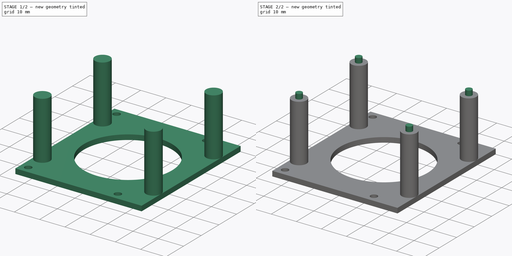
[diagram: build sequence overview — one tinted view per stage of 2, left to right]
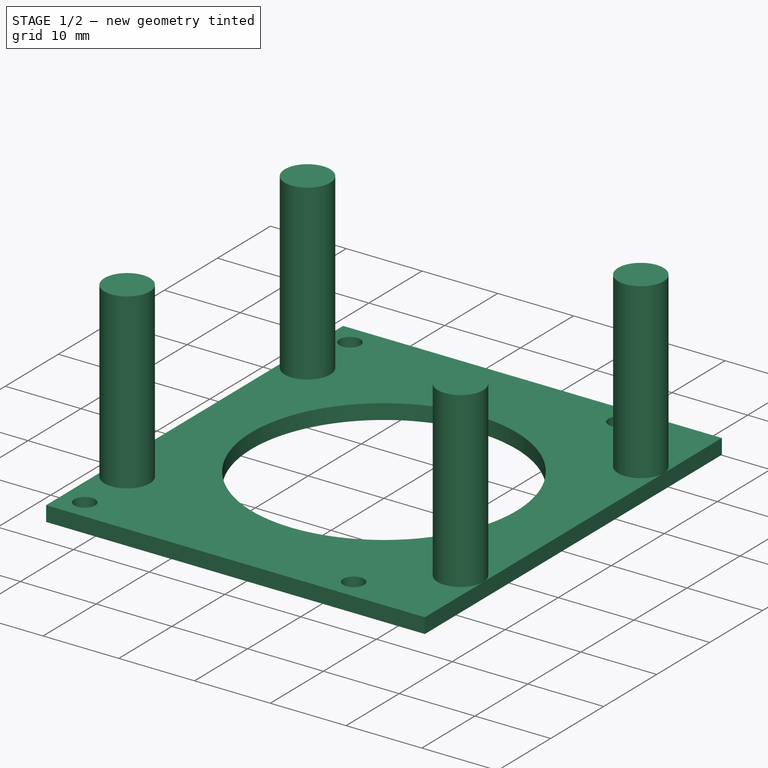
[diagram: stage 1 of 2 — iso view after this stage's code; geometry added in this stage tinted green]
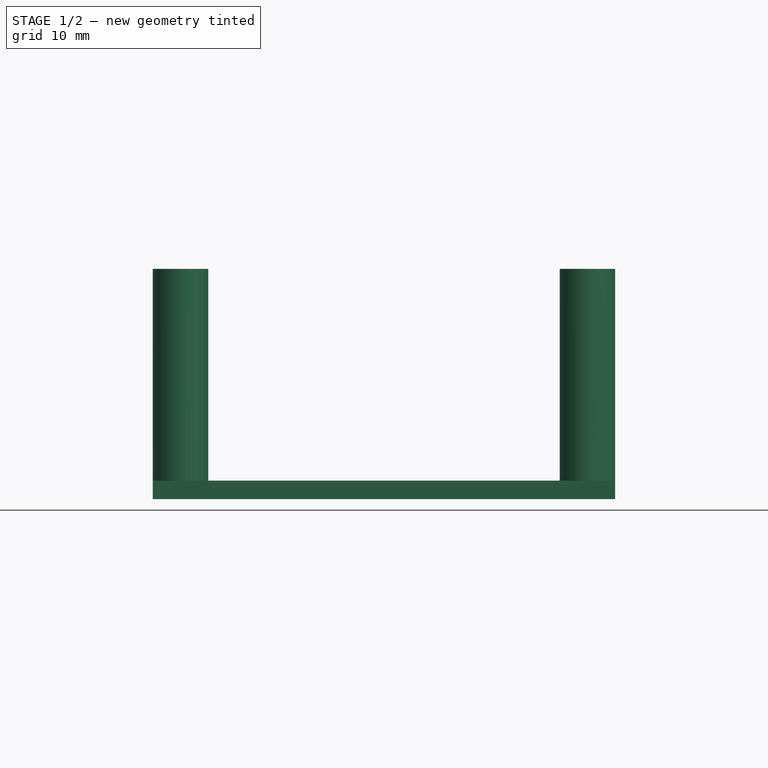
[diagram: stage 1 of 2 — front view after this stage's code; geometry added in this stage tinted green]
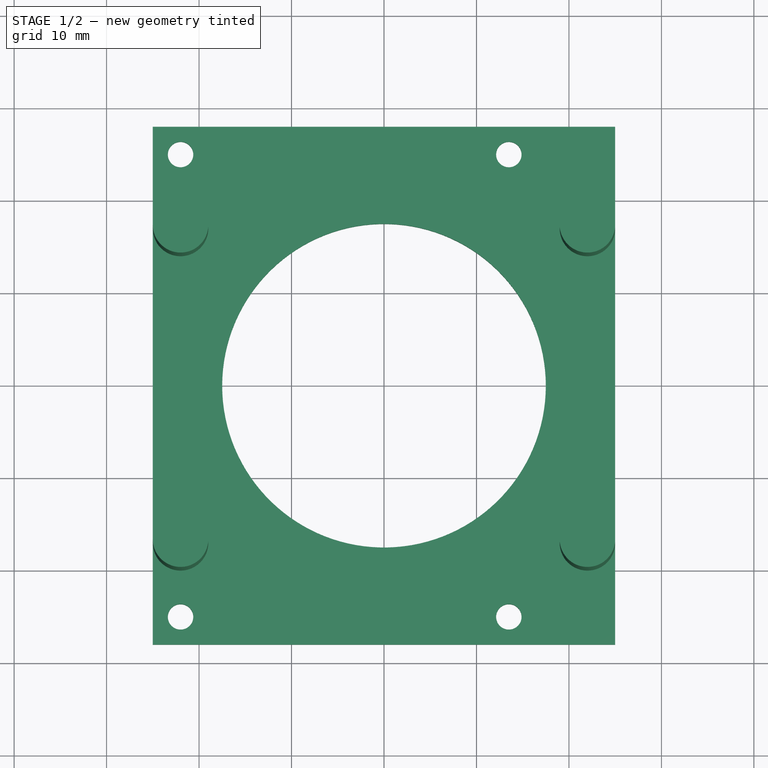
[diagram: stage 1 of 2 — top view after this stage's code; geometry added in this stage tinted green]
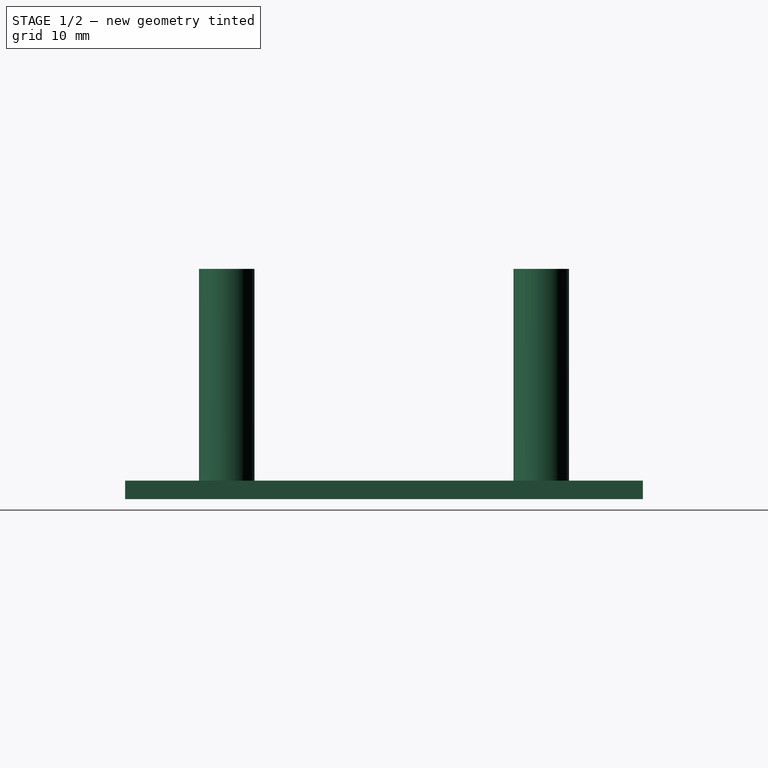
[diagram: stage 1 of 2 — right view after this stage's code; geometry added in this stage tinted green]
FCSTD DOCUMENT  (FreeCAD 1.0R39109 (Git))
Label: MountTray
License: All rights reserved
objects: Sketcher::SketchObject×3, PartDesign::Pad×3, Spreadsheet::Sheet×1, PartDesign::Body×1
note: 16 computed .brp shape members not serialized (recipe doc carries the construction recipe); baked Part::Feature solids carry a one-line shape summary decoded from their .brp

FEATURE [Spreadsheet::Sheet] Spreadsheet  label="sheet"
  cells = A1='PCB Details; D1='BoxMounts; A3='PCB Width; B3(pcb_width)==40 mm; D3='Hole Width Distance (center 2 center); E3(HoleWidthDistance)==50 mm; A4='PCB Length; B4(pcb_length)==50 mm; D4='Hole Length Distance (center 2 center); E4(HoleLengthDistance)==71 mm; A5='PCB Hole Size; B5(pcb_holesize)==2.6 mm; A6='PCB Hole centre from side; B6(pcb_holecentre)==3 mm; D6='Hole Diameter; E6(HoleDiameter)==2.5 mm; A7='PCB Height; B7==1.6 mm; D8='Mount Width; E8(MountWidth)==56 mm; A9='RJ45 height; B9==13 mm; D9='Mount Length; E9(MountLength)==50 mm; A11='PCB Mount Height; B11(PCBMountHeight)==B16 - B18; A14='Bottom Height (from standoff); B14==17.6 mm; A15='Lid Height; B15==10.6 mm; A16='Total Height; B16==B14 + B15; A18='PCB Height; B18==1.7 mm + 1.6 mm
FEATURE [Sketcher::SketchObject] Sketch  label="pcbtraysketch"
  ArcFitTolerance = 1e-06
  AttachmentSupport = -> [XY_Plane]
  FullyConstrained = true
  MakeInternals = false
  MapMode = 5
  expr: Constraints[10] = <<sheet>>.MountWidth
  expr: Constraints[16] = <<sheet>>.HoleDiameter * 1.1
  expr: Constraints[20] = <<sheet>>.HoleLengthDistance / 2
  expr: Constraints[21] = <<sheet>>.HoleWidthDistance
  expr: Constraints[9] = <<sheet>>.MountLength
  sketch-geometry (10):
    g0: LineSegment StartX=-25 StartY=-28 StartZ=0 EndX=25 EndY=-28 EndZ=0
    g1: LineSegment StartX=25 StartY=-28 StartZ=0 EndX=25 EndY=28 EndZ=0
    g2: LineSegment StartX=25 StartY=28 StartZ=0 EndX=-25 EndY=28 EndZ=0
    g3: LineSegment StartX=-25 StartY=28 StartZ=0 EndX=-25 EndY=-28 EndZ=0
    g4: GeomPoint [constr] X=0 Y=0 Z=0
    g5: Circle CenterX=-22 CenterY=25 CenterZ=0 NormalX=0 NormalY=0 NormalZ=1 AngleXU=0 Radius=1.375
    g6: Circle CenterX=13.5 CenterY=25 CenterZ=0 NormalX=0 NormalY=0 NormalZ=1 AngleXU=0 Radius=1.375
    g7: Circle CenterX=-22 CenterY=-25 CenterZ=0 NormalX=0 NormalY=0 NormalZ=1 AngleXU=0 Radius=1.375
    g8: Circle CenterX=13.5 CenterY=-25 CenterZ=0 NormalX=0 NormalY=0 NormalZ=1 AngleXU=0 Radius=1.375
    g9: Circle CenterX=0 CenterY=0 CenterZ=0 NormalX=0 NormalY=0 NormalZ=1 AngleXU=0 Radius=17.5
  constraints (25):
    c: Coincident(g0,g1)
    c: Coincident(g1,g2)
    c: Coincident(g2,g3)
    c: Coincident(g3,g0)
    c: Horizontal(g0)
    c: Horizontal(g2)
    c: Vertical(g1)
    c: Vertical(g3)
    c: Symmetric(g2,g0,g4)
    c: Distance(g1,g3) = 50
    c: Distance(g0,g2) = 56
    c: Coincident(g4,g-1)
    c: Vertical(g6,g8)
    c: Horizontal(g5,g6)
    c: Horizontal(g7,g8)
    c: Symmetric(g5,g7,g-1)
    c: Diameter(g5) = 2.75
    c: Equal(g5,g7)
    c: Equal(g7,g8)
    c: Equal(g8,g6)
    c: DistanceX(g7,g8) = 35.5
    c: DistanceY(g8,g6) = 50
    c: DistanceX(g2,g5) = 3
    c: Coincident(g9,g4)
    c: Diameter(g9) = 35
FEATURE [PartDesign::Pad] Pad  label="pcbtray"
  Direction = (0,0,1)
  Length = 2
  Length2 = 10
  Profile = -> Sketch
  ReferenceAxis = -> Sketch [N_Axis]
  Suppressed = false
  Type = 0
FEATURE [Sketcher::SketchObject] Sketch001  label="pcbtraystandoffsketch"
  ArcFitTolerance = 1e-06
  AttachmentSupport = -> [XY_Plane]
  FullyConstrained = true
  MakeInternals = false
  MapMode = 5
  expr: Constraints[7] = <<sheet>>.pcb_length - <<sheet>>.pcb_holecentre - <<sheet>>.pcb_holecentre
  expr: Constraints[8] = <<sheet>>.pcb_width - <<sheet>>.pcb_holecentre - <<sheet>>.pcb_holecentre
  sketch-geometry (4):
    g0: Circle CenterX=-22 CenterY=17 CenterZ=0 NormalX=0 NormalY=0 NormalZ=1 AngleXU=0 Radius=3
    g1: Circle CenterX=22 CenterY=17 CenterZ=0 NormalX=0 NormalY=0 NormalZ=1 AngleXU=0 Radius=3
    g2: Circle CenterX=22 CenterY=-17 CenterZ=0 NormalX=0 NormalY=0 NormalZ=1 AngleXU=0 Radius=3
    g3: Circle CenterX=-22 CenterY=-17 CenterZ=0 NormalX=0 NormalY=0 NormalZ=1 AngleXU=0 Radius=3
  constraints (11):
    c: Vertical(g0,g3)
    c: Vertical(g1,g2)
    c: Horizontal(g1,g0)
    c: Diameter(g0) = 6
    c: Equal(g0,g3)
    c: Equal(g3,g2)
    c: Equal(g2,g1)
    c: DistanceX(g3,g2) = 44
    c: DistanceY(g3,g0) = 34
    c: Symmetric(g1,g3,g-1)
    c: Horizontal(g3,g2)
FEATURE [PartDesign::Pad] Pad001  label="pcbtraystandoff"
  BaseFeature = -> Pad
  Direction = (0,0,1)
  Length = 24.9
  Length2 = 10
  Profile = -> Sketch001
  ReferenceAxis = -> Sketch001 [N_Axis]
  Suppressed = false
  Type = 0
  expr: Length = <<sheet>>.PCBMountHeight
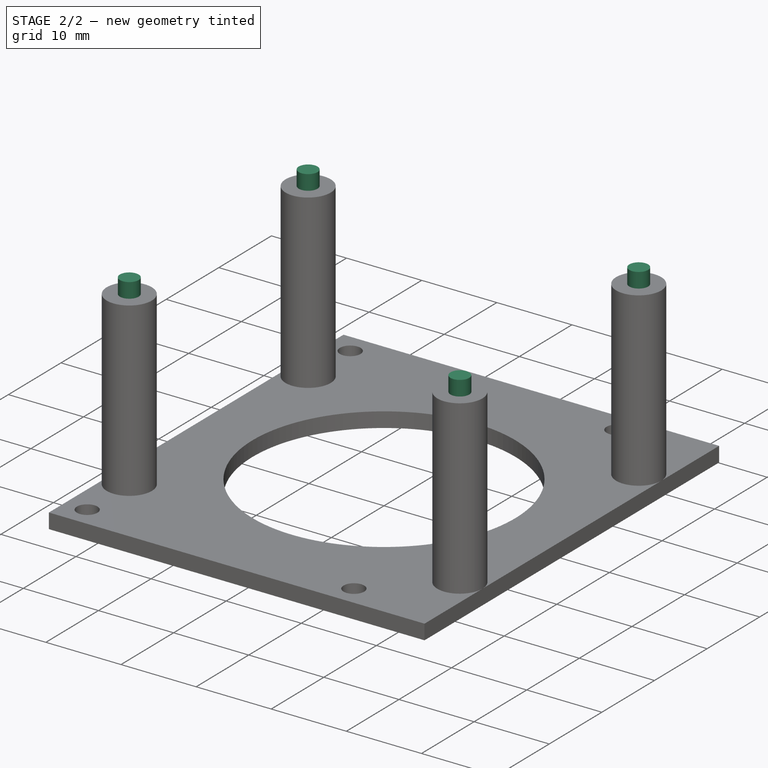
[diagram: stage 2 of 2 — iso view after this stage's code; geometry added in this stage tinted green]
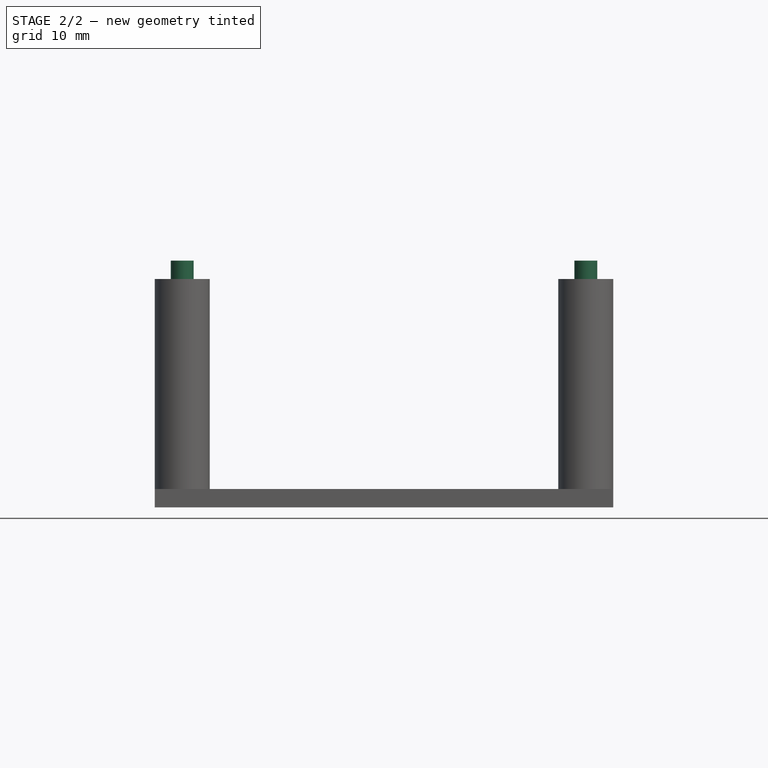
[diagram: stage 2 of 2 — front view after this stage's code; geometry added in this stage tinted green]
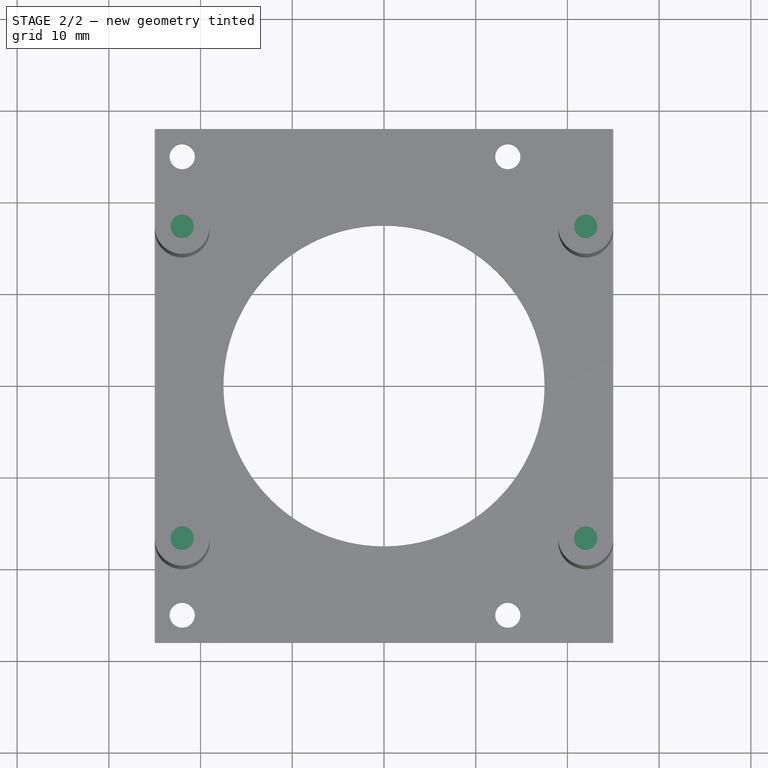
[diagram: stage 2 of 2 — top view after this stage's code; geometry added in this stage tinted green]
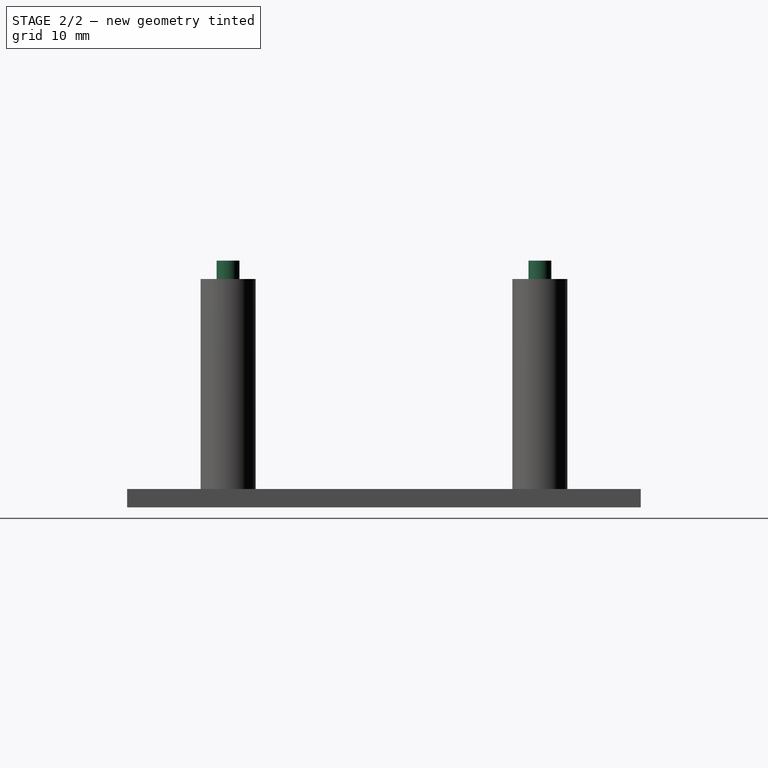
[diagram: stage 2 of 2 — right view after this stage's code; geometry added in this stage tinted green]
FEATURE [Sketcher::SketchObject] Sketch002
  ArcFitTolerance = 1e-06
  AttachmentSupport = -> [XY_Plane]
  FullyConstrained = true
  MakeInternals = false
  MapMode = 5
  expr: Constraints[8] = <<sheet>>.pcb_length - <<sheet>>.pcb_holecentre - <<sheet>>.pcb_holecentre
  expr: Constraints[9] = <<sheet>>.pcb_width - <<sheet>>.pcb_holecentre - <<sheet>>.pcb_holecentre
  sketch-geometry (4):
    g0: Circle CenterX=-22 CenterY=17 CenterZ=0 NormalX=0 NormalY=0 NormalZ=1 AngleXU=0 Radius=1.25
    g1: Circle CenterX=22 CenterY=17 CenterZ=0 NormalX=0 NormalY=0 NormalZ=1 AngleXU=0 Radius=1.25
    g2: Circle CenterX=22 CenterY=-17 CenterZ=0 NormalX=0 NormalY=0 NormalZ=1 AngleXU=0 Radius=1.25
    g3: Circle CenterX=-22 CenterY=-17 CenterZ=0 NormalX=0 NormalY=0 NormalZ=1 AngleXU=0 Radius=1.25
  constraints (11):
    c: Diameter(g3) = 2.5
    c: Equal(g3,g0)
    c: Equal(g0,g1)
    c: Equal(g1,g2)
    c: Horizontal(g0,g1)
    c: Vertical(g1,g2)
    c: Vertical(g0,g3)
    c: Symmetric(g0,g2,g-1)
    c: DistanceX(g0,g1) = 44
    c: DistanceY(g2,g1) = 34
    c: Horizontal(g3,g2)
FEATURE [PartDesign::Pad] Pad002
  BaseFeature = -> Pad001
  Direction = (0,0,1)
  Length = 26.9
  Length2 = 10
  Profile = -> Sketch002
  ReferenceAxis = -> Sketch002 [N_Axis]
  Suppressed = false
  Type = 0
  expr: Length = <<pcbtraystandoff>>.Length + 2 mm
FEATURE [PartDesign::Body] Body
  AllowCompound = false
  Group = -> [Sketch,Pad,Sketch001,Pad001,Sketch002,Pad002]
  Origin = -> Origin
  Tip = -> Pad002
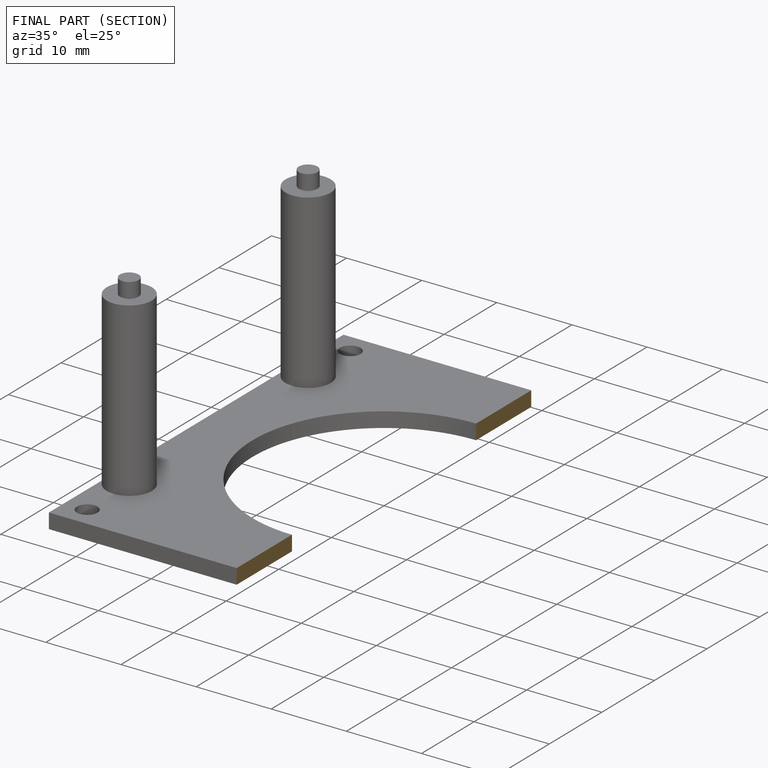
[diagram: finished part — half-section view (interior)]
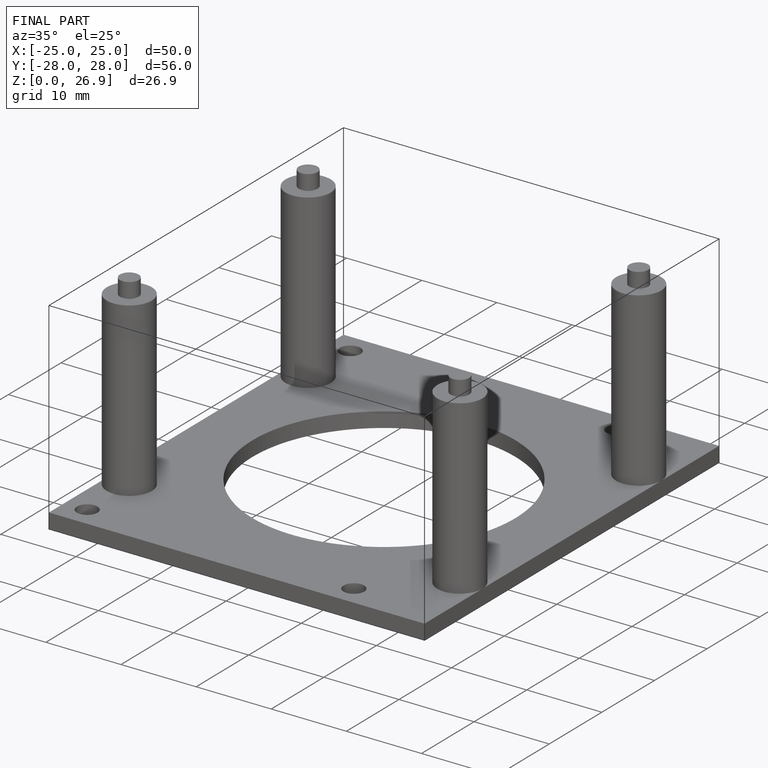
[diagram: finished part — iso view with bounding-box wireframe]
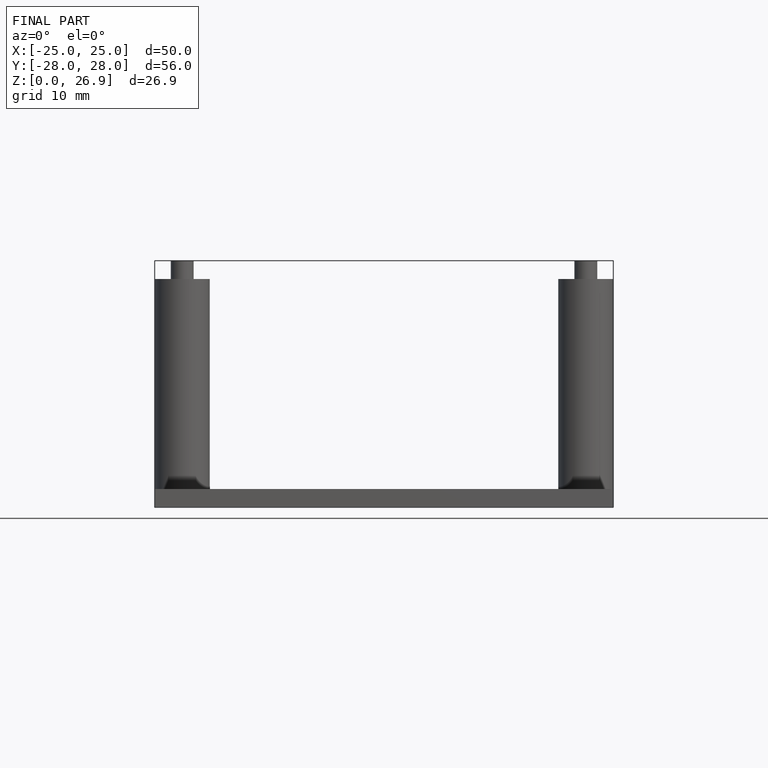
[diagram: finished part — front view with bounding-box wireframe]
